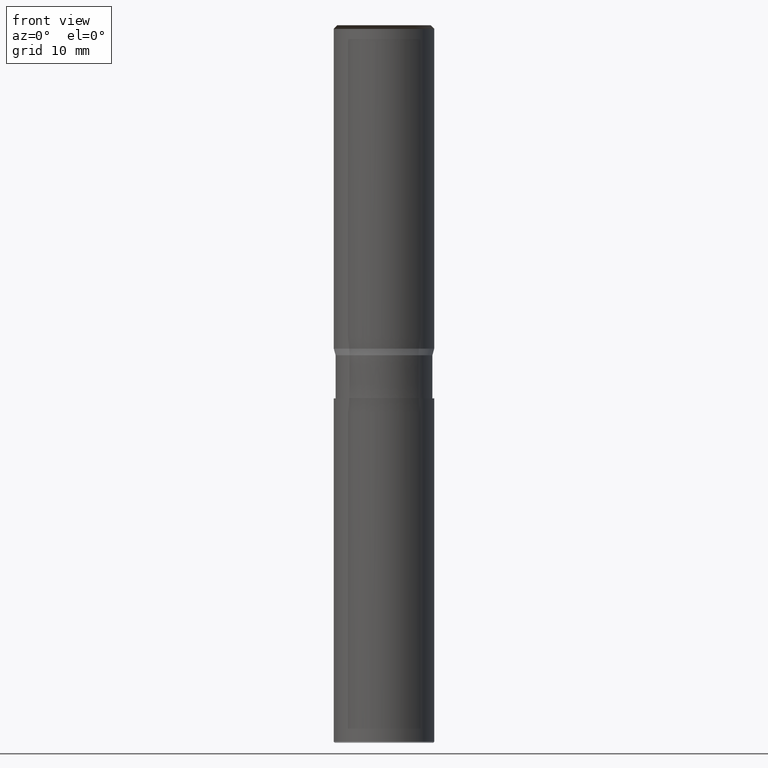
[diagram: clean part render]
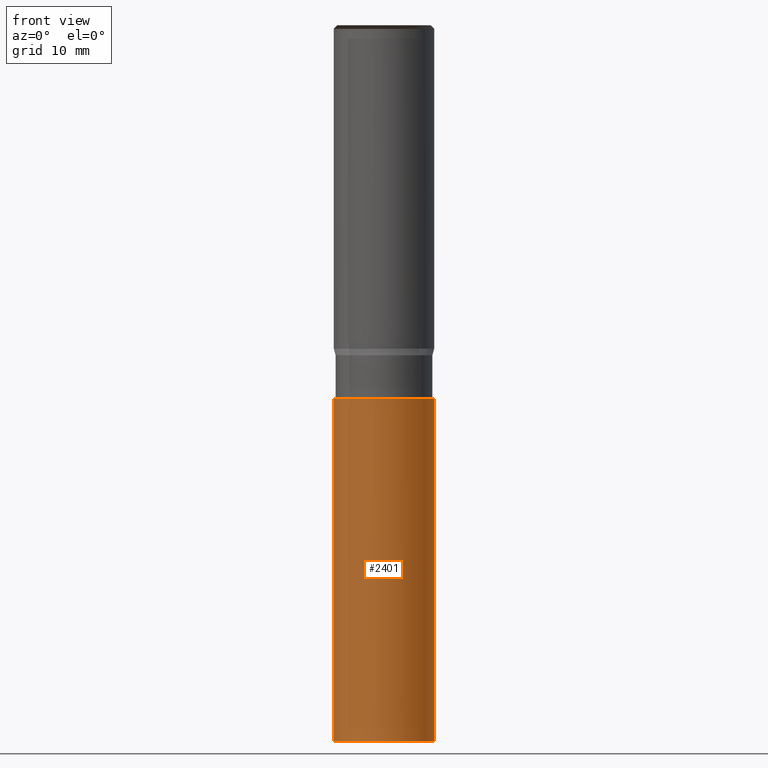
[diagram: same view with one face highlighted and labeled with its STEP entity id]
A machine part, front view. The second image highlights one B-rep face of the part: STEP entity #2401.
In plain terms, the highlighted face is a freeform B-spline surface patch.
Its self-contained STEP definition (entity closure, byte-faithful):
#2206=CARTESIAN_POINT('',(7.0,0.0,-54.79300989));
#2210=CARTESIAN_POINT('',(-7.0,0.0,-54.79300989));
#2211=CARTESIAN_POINT('',(7.0,0.0,-6.93300989));
#2215=CARTESIAN_POINT('',(-7.0,0.0,-6.93300989));
#2220=CARTESIAN_POINT('',(-7.0,-7.0,-54.79300989));
#2221=CARTESIAN_POINT('',(0.0,-7.0,-54.79300989));
#2222=CARTESIAN_POINT('',(7.0,-7.0,-54.79300989));
#2223=CARTESIAN_POINT('',(-7.0,-7.0,-6.93300989));
#2224=CARTESIAN_POINT('',(0.0,-7.0,-6.93300989));
#2225=CARTESIAN_POINT('',(7.0,-7.0,-6.93300989));
#2382=(
BOUNDED_SURFACE()
B_SPLINE_SURFACE(1,2,(
(#2210,#2220,#2221,#2222,#2206),
(#2215,#2223,#2224,#2225,#2211)
), .UNSPECIFIED.,.F.,.F.,.F.)
B_SPLINE_SURFACE_WITH_KNOTS((2,2),(3,2,3),(
0.0,1.0),(
0.0,0.5,1.0), .UNSPECIFIED.)
GEOMETRIC_REPRESENTATION_ITEM()
RATIONAL_B_SPLINE_SURFACE(((1.0,0.707106781187,1.0,0.707106781187,1.0),
(1.0,0.707106781187,1.0,0.707106781187,1.0)
))
REPRESENTATION_ITEM('')
SURFACE()
);
#2383=(
BOUNDED_CURVE()
B_SPLINE_CURVE(1,(#2215,#2210),.UNSPECIFIED.,.F.,.F.)
B_SPLINE_CURVE_WITH_KNOTS((2,2),
(0.0,1.0),.UNSPECIFIED.)
CURVE()
GEOMETRIC_REPRESENTATION_ITEM()
RATIONAL_B_SPLINE_CURVE((1.0,1.0))
REPRESENTATION_ITEM('')
);
#2384=(
BOUNDED_CURVE()
B_SPLINE_CURVE(2,(#2210,#2220,#2221,#2222,#2206),.UNSPECIFIED.,.F.,.F.)
B_SPLINE_CURVE_WITH_KNOTS((3,2,3),
(0.0,0.5,1.0),.UNSPECIFIED.)
CURVE()
GEOMETRIC_REPRESENTATION_ITEM()
RATIONAL_B_SPLINE_CURVE((1.0,0.707106781187,1.0,0.707106781187,1.0))
REPRESENTATION_ITEM('')
);
#2385=(
BOUNDED_CURVE()
B_SPLINE_CURVE(1,(#2206,#2211),.UNSPECIFIED.,.F.,.F.)
B_SPLINE_CURVE_WITH_KNOTS((2,2),
(0.0,1.0),.UNSPECIFIED.)
CURVE()
GEOMETRIC_REPRESENTATION_ITEM()
RATIONAL_B_SPLINE_CURVE((1.0,1.0))
REPRESENTATION_ITEM('')
);
#2386=(
BOUNDED_CURVE()
B_SPLINE_CURVE(2,(#2211,#2225,#2224,#2223,#2215),.UNSPECIFIED.,.F.,.F.)
B_SPLINE_CURVE_WITH_KNOTS((3,2,3),
(0.0,0.5,1.0),.UNSPECIFIED.)
CURVE()
GEOMETRIC_REPRESENTATION_ITEM()
RATIONAL_B_SPLINE_CURVE((1.0,0.707106781187,1.0,0.707106781187,1.0))
REPRESENTATION_ITEM('')
);
#2387=VERTEX_POINT('',#2206);
#2388=VERTEX_POINT('',#2210);
#2389=VERTEX_POINT('',#2211);
#2390=VERTEX_POINT('',#2215);
#2391=EDGE_CURVE('',#2390,#2388,#2383,.T.);
#2392=EDGE_CURVE('',#2388,#2387,#2384,.T.);
#2393=EDGE_CURVE('',#2387,#2389,#2385,.T.);
#2394=EDGE_CURVE('',#2389,#2390,#2386,.T.);
#2395=ORIENTED_EDGE('',*,*,#2391,.T.);
#2396=ORIENTED_EDGE('',*,*,#2392,.T.);
#2397=ORIENTED_EDGE('',*,*,#2393,.T.);
#2398=ORIENTED_EDGE('',*,*,#2394,.T.);
#2399=EDGE_LOOP('',(#2395,#2396,#2397,#2398));
#2400=FACE_OUTER_BOUND('',#2399,.T.);
#2401=ADVANCED_FACE('',(#2400),#2382,.T.);